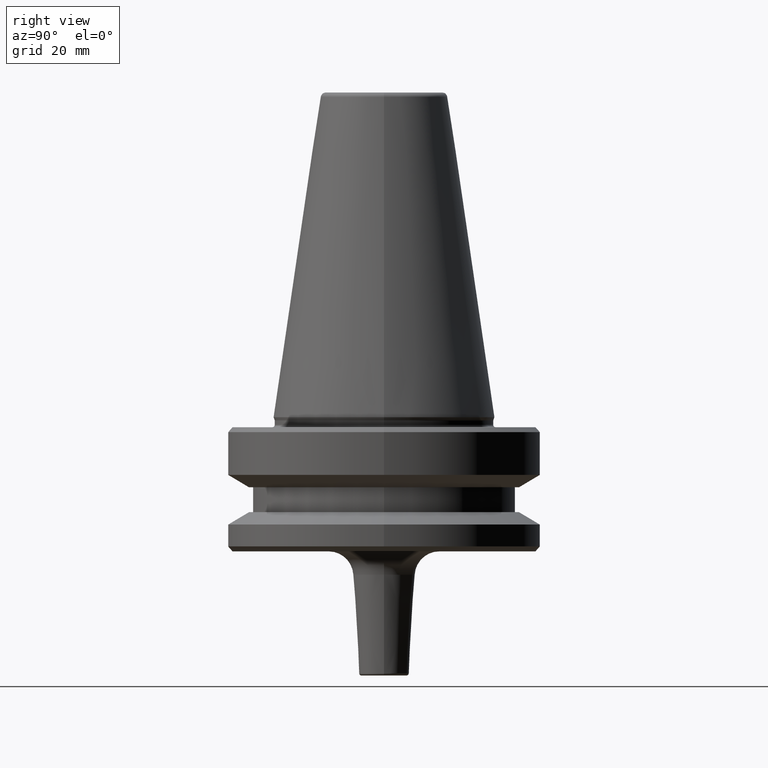
[diagram: clean part render]
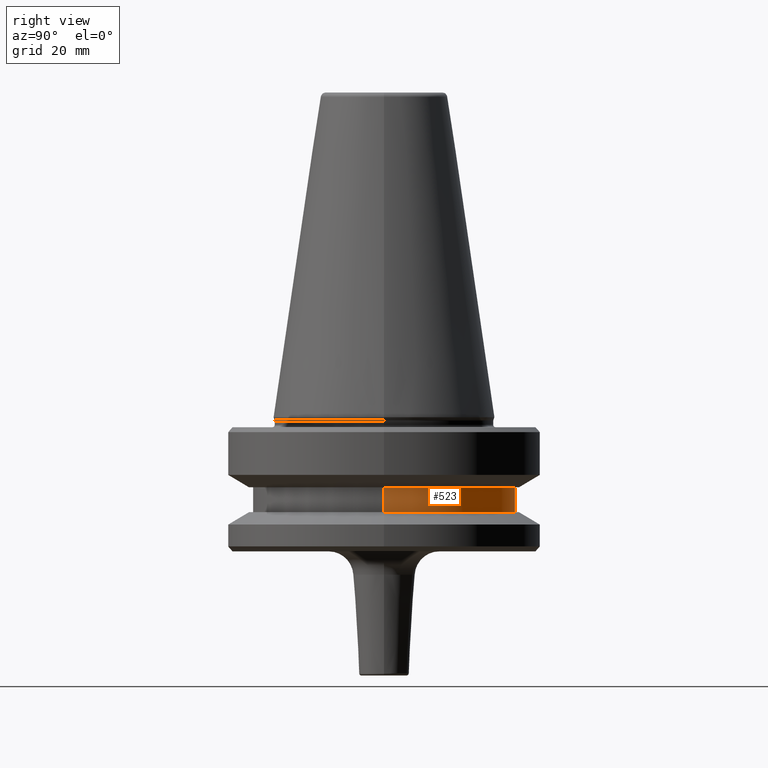
[diagram: same view with one face highlighted and labeled with its STEP entity id]
A machine part, right view. The second image highlights one B-rep face of the part: STEP entity #523.
In plain terms, the highlighted cylindrical surface (partial cylindrical patch) has radius 26.5 mm, axis along (-0, -0, 1).
Its self-contained STEP definition (entity closure, byte-faithful):
#78 = VERTEX_POINT ( 'NONE', #85 ) ;
#85 = CARTESIAN_POINT ( 'NONE',  ( -26.50000000000019200, 3.245314017740509400E-015, -79.50000000000012800 ) ) ;
#92 = ORIENTED_EDGE ( 'NONE', *, *, #920, .T. ) ;
#101 = CARTESIAN_POINT ( 'NONE',  ( -26.50000000000019200, 3.245314017740509400E-015, 6.357346922996331500 ) ) ;
#155 = ORIENTED_EDGE ( 'NONE', *, *, #800, .F. ) ;
#173 = AXIS2_PLACEMENT_3D ( 'NONE', #783, #1012, #294 ) ;
#207 = CARTESIAN_POINT ( 'NONE',  ( 0.0000000000000000000, 0.0000000000000000000, -84.50000000000068200 ) ) ;
#242 = VECTOR ( 'NONE', #840, 1000.000000000000000 ) ;
#294 = DIRECTION ( 'NONE',  ( 1.000000000000000000, 0.0000000000000000000, 0.0000000000000000000 ) ) ;
#301 = DIRECTION ( 'NONE',  ( 1.000000000000000000, 0.0000000000000000000, 0.0000000000000000000 ) ) ;
#324 = VERTEX_POINT ( 'NONE', #931 ) ;
#349 = AXIS2_PLACEMENT_3D ( 'NONE', #207, #789, #301 ) ;
#404 = ORIENTED_EDGE ( 'NONE', *, *, #599, .F. ) ;
#418 = DIRECTION ( 'NONE',  ( -0.0000000000000000000, -0.0000000000000000000, 1.000000000000000000 ) ) ;
#501 = CIRCLE ( 'NONE', #871, 26.50000000000019200 ) ;
#506 = CARTESIAN_POINT ( 'NONE',  ( -26.50000000000019200, 3.245314017740509400E-015, -84.50000000000068200 ) ) ;
#515 = DIRECTION ( 'NONE',  ( -0.0000000000000000000, -0.0000000000000000000, 1.000000000000000000 ) ) ;
#523 = ADVANCED_FACE ( 'NONE', ( #828 ), #776, .T. ) ;
#575 = CARTESIAN_POINT ( 'NONE',  ( 26.50000000000019200, 0.0000000000000000000, -79.50000000000012800 ) ) ;
#587 = VERTEX_POINT ( 'NONE', #575 ) ;
#599 = EDGE_CURVE ( 'NONE', #587, #78, #501, .T. ) ;
#655 = LINE ( 'NONE', #101, #242 ) ;
#708 = CIRCLE ( 'NONE', #349, 26.50000000000019200 ) ;
#741 = VECTOR ( 'NONE', #515, 1000.000000000000000 ) ;
#769 = VERTEX_POINT ( 'NONE', #506 ) ;
#776 = CYLINDRICAL_SURFACE ( 'NONE', #173, 26.50000000000019200 ) ;
#777 = EDGE_LOOP ( 'NONE', ( #92, #1033, #404, #155 ) ) ;
#783 = CARTESIAN_POINT ( 'NONE',  ( 0.0000000000000000000, 0.0000000000000000000, 6.357346922996331500 ) ) ;
#789 = DIRECTION ( 'NONE',  ( -0.0000000000000000000, -0.0000000000000000000, 1.000000000000000000 ) ) ;
#800 = EDGE_CURVE ( 'NONE', #324, #587, #915, .T. ) ;
#828 = FACE_OUTER_BOUND ( 'NONE', #777, .T. ) ;
#840 = DIRECTION ( 'NONE',  ( -0.0000000000000000000, -0.0000000000000000000, 1.000000000000000000 ) ) ;
#871 = AXIS2_PLACEMENT_3D ( 'NONE', #886, #418, #969 ) ;
#886 = CARTESIAN_POINT ( 'NONE',  ( 0.0000000000000000000, 0.0000000000000000000, -79.50000000000012800 ) ) ;
#915 = LINE ( 'NONE', #996, #741 ) ;
#920 = EDGE_CURVE ( 'NONE', #324, #769, #708, .T. ) ;
#931 = CARTESIAN_POINT ( 'NONE',  ( 26.50000000000019200, 0.0000000000000000000, -84.50000000000068200 ) ) ;
#969 = DIRECTION ( 'NONE',  ( 1.000000000000000000, 0.0000000000000000000, 0.0000000000000000000 ) ) ;
#996 = CARTESIAN_POINT ( 'NONE',  ( 26.50000000000019200, 0.0000000000000000000, 6.357346922996331500 ) ) ;
#1002 = EDGE_CURVE ( 'NONE', #769, #78, #655, .T. ) ;
#1012 = DIRECTION ( 'NONE',  ( -0.0000000000000000000, -0.0000000000000000000, 1.000000000000000000 ) ) ;
#1033 = ORIENTED_EDGE ( 'NONE', *, *, #1002, .T. ) ;